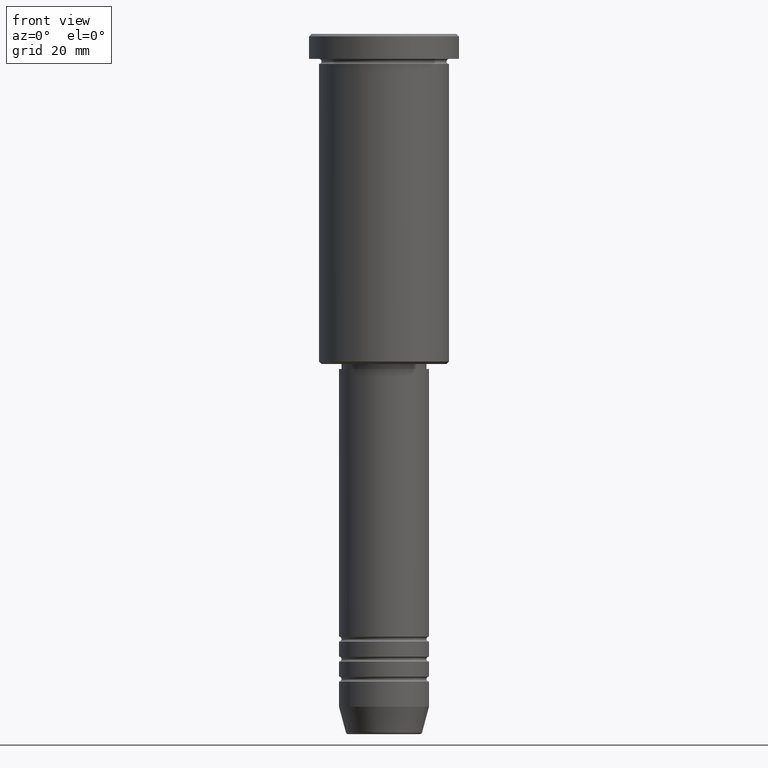
[diagram: clean part render]
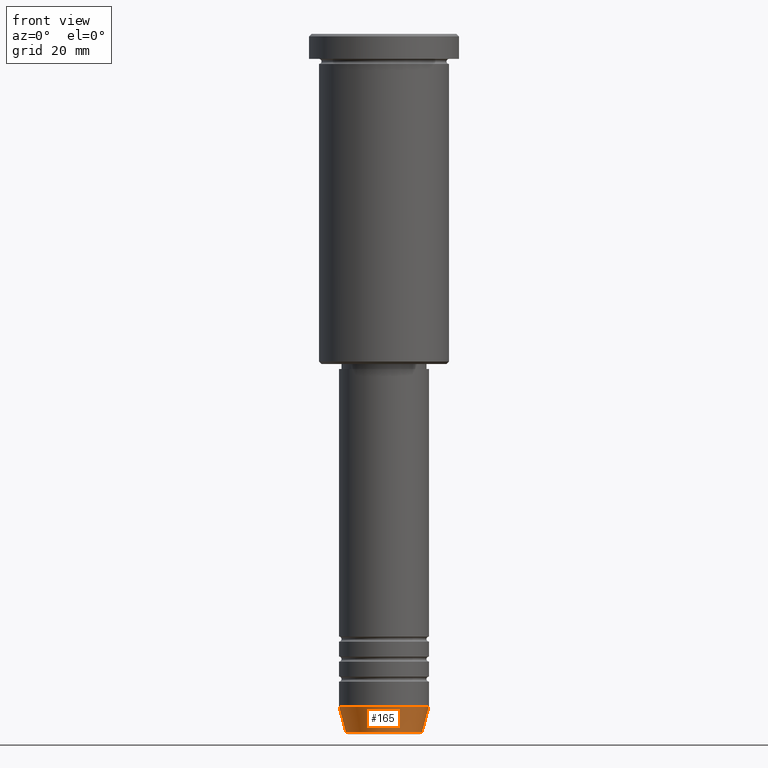
[diagram: same view with one face highlighted and labeled with its STEP entity id]
A machine part, front view. The second image highlights one B-rep face of the part: STEP entity #165.
In plain terms, the highlighted conical surface has half-angle 15 deg.
Its self-contained STEP definition (entity closure, byte-faithful):
#18 = ORIENTED_EDGE ( 'NONE', *, *, #187, .T. ) ;
#23 = FACE_OUTER_BOUND ( 'NONE', #399, .T. ) ;
#32 = CIRCLE ( 'NONE', #333, 9.000000000000001776 ) ;
#56 = CARTESIAN_POINT ( 'NONE',  ( 9.000000000000001776, 0.000000000000000000, -134.5000000000000000 ) ) ;
#64 = CARTESIAN_POINT ( 'NONE',  ( 9.000000000000001776, 0.000000000000000000, -134.5000000000000000 ) ) ;
#79 = CARTESIAN_POINT ( 'NONE',  ( 7.625578860783879698, 0.000000000000000000, -139.6294095225512706 ) ) ;
#116 = LINE ( 'NONE', #64, #734 ) ;
#165 = ADVANCED_FACE ( 'NONE', ( #23 ), #944, .T. ) ;
#187 = EDGE_CURVE ( 'NONE', #752, #528, #116, .T. ) ;
#298 = DIRECTION ( 'NONE',  ( 1.000000000000000000, 0.000000000000000000, 0.000000000000000000 ) ) ;
#308 = VECTOR ( 'NONE', #715, 1000.000000000000000 ) ;
#333 = AXIS2_PLACEMENT_3D ( 'NONE', #370, #955, #660 ) ;
#352 = CARTESIAN_POINT ( 'NONE',  ( -9.000000000000001776, 1.102182119232617911E-15, -134.5000000000000000 ) ) ;
#370 = CARTESIAN_POINT ( 'NONE',  ( 0.000000000000000000, 0.000000000000000000, -134.5000000000000000 ) ) ;
#376 = CARTESIAN_POINT ( 'NONE',  ( 0.000000000000000000, 0.000000000000000000, -134.5000000000000000 ) ) ;
#384 = VERTEX_POINT ( 'NONE', #352 ) ;
#394 = CARTESIAN_POINT ( 'NONE',  ( -7.625578860783880586, 1.018023096791544096E-15, -139.6294095225512706 ) ) ;
#399 = EDGE_LOOP ( 'NONE', ( #1108, #989, #18, #943 ) ) ;
#434 = CARTESIAN_POINT ( 'NONE',  ( -9.000000000000001776, 1.102182119232617911E-15, -134.5000000000000000 ) ) ;
#485 = EDGE_CURVE ( 'NONE', #384, #528, #32, .T. ) ;
#528 = VERTEX_POINT ( 'NONE', #56 ) ;
#591 = EDGE_CURVE ( 'NONE', #1033, #752, #1132, .T. ) ;
#616 = AXIS2_PLACEMENT_3D ( 'NONE', #376, #750, #298 ) ;
#621 = EDGE_CURVE ( 'NONE', #1033, #384, #986, .T. ) ;
#660 = DIRECTION ( 'NONE',  ( 1.000000000000000000, 0.000000000000000000, 0.000000000000000000 ) ) ;
#715 = DIRECTION ( 'NONE',  ( -0.2588190451025214056, 3.169619151431772953E-17, 0.9659258262890680902 ) ) ;
#734 = VECTOR ( 'NONE', #778, 1000.000000000000000 ) ;
#749 = DIRECTION ( 'NONE',  ( -0.000000000000000000, -0.000000000000000000, 1.000000000000000000 ) ) ;
#750 = DIRECTION ( 'NONE',  ( -0.000000000000000000, -0.000000000000000000, 1.000000000000000000 ) ) ;
#752 = VERTEX_POINT ( 'NONE', #79 ) ;
#778 = DIRECTION ( 'NONE',  ( 0.2588190451025214056, 0.000000000000000000, 0.9659258262890680902 ) ) ;
#875 = AXIS2_PLACEMENT_3D ( 'NONE', #928, #749, #1114 ) ;
#928 = CARTESIAN_POINT ( 'NONE',  ( 0.000000000000000000, 0.000000000000000000, -139.6294095225512706 ) ) ;
#943 = ORIENTED_EDGE ( 'NONE', *, *, #485, .F. ) ;
#944 = CONICAL_SURFACE ( 'NONE', #616, 9.000000000000001776, 0.2617993877991501295 ) ;
#955 = DIRECTION ( 'NONE',  ( -0.000000000000000000, -0.000000000000000000, 1.000000000000000000 ) ) ;
#986 = LINE ( 'NONE', #434, #308 ) ;
#989 = ORIENTED_EDGE ( 'NONE', *, *, #591, .T. ) ;
#1033 = VERTEX_POINT ( 'NONE', #394 ) ;
#1108 = ORIENTED_EDGE ( 'NONE', *, *, #621, .F. ) ;
#1114 = DIRECTION ( 'NONE',  ( 1.000000000000000000, 0.000000000000000000, 0.000000000000000000 ) ) ;
#1132 = CIRCLE ( 'NONE', #875, 7.625578860783879698 ) ;